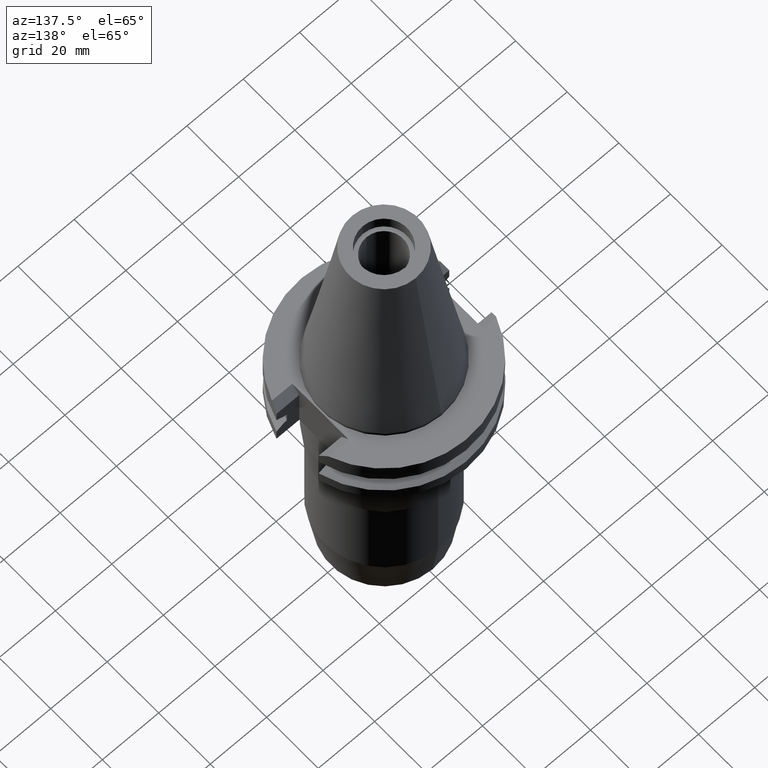
[diagram: clean part render]
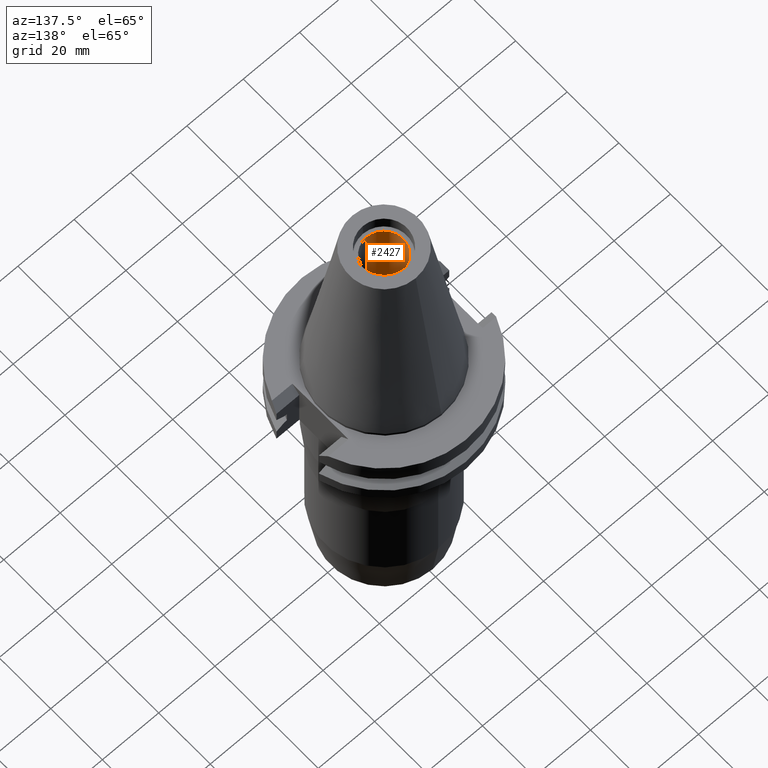
[diagram: same view with one face highlighted and labeled with its STEP entity id]
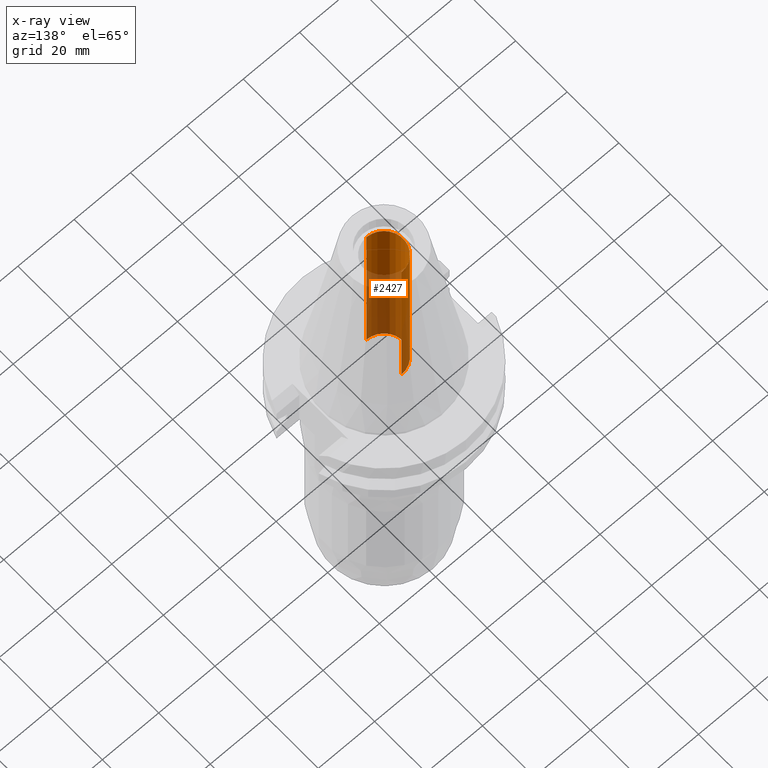
[diagram: x-ray of the same camera — body ghosted, the highlighted face saturated]
A machine part, auxiliary view. The second image highlights one B-rep face of the part: STEP entity #2427.
The next image is the same camera in x-ray: the body ghosted, the highlighted face saturated — about 57% of this face is hidden behind the body in this view.
In plain terms, the highlighted cylindrical surface (edge-blend (fillet) strip) has radius 6.8 mm, axis along (0, 0, -1).
Its self-contained STEP definition (entity closure, byte-faithful):
#1175=CARTESIAN_POINT('',(0.E0,2.164471368983E-14,8.526512829121E-14));
#1176=DIRECTION('',(0.E0,0.E0,-1.E0));
#1177=DIRECTION('',(0.E0,-1.E0,0.E0));
#1178=AXIS2_PLACEMENT_3D('',#1175,#1176,#1177);
#1190=DIRECTION('',(0.E0,0.E0,1.E0));
#1191=VECTOR('',#1190,6.347E1);
#1192=CARTESIAN_POINT('',(0.E0,6.8E0,9.947598300641E-14));
#1193=LINE('',#1192,#1191);
#1205=DIRECTION('',(0.E0,0.E0,1.E0));
#1206=VECTOR('',#1205,6.347E1);
#1207=CARTESIAN_POINT('',(0.E0,-6.8E0,9.947598300641E-14));
#1208=LINE('',#1207,#1206);
#1236=CARTESIAN_POINT('',(0.E0,2.164471368983E-14,6.347E1));
#1237=DIRECTION('',(0.E0,0.E0,1.E0));
#1238=DIRECTION('',(0.E0,1.E0,0.E0));
#1239=AXIS2_PLACEMENT_3D('',#1236,#1237,#1238);
#1270=CARTESIAN_POINT('',(0.E0,-6.8E0,6.347E1));
#1271=CARTESIAN_POINT('',(0.E0,6.8E0,6.347E1));
#1272=VERTEX_POINT('',#1270);
#1273=VERTEX_POINT('',#1271);
#1274=CARTESIAN_POINT('',(0.E0,6.8E0,9.947598300641E-14));
#1275=VERTEX_POINT('',#1274);
#1276=CARTESIAN_POINT('',(0.E0,-6.8E0,9.947598300641E-14));
#1277=VERTEX_POINT('',#1276);
#2415=CARTESIAN_POINT('',(0.E0,2.164471368983E-14,7.67425E1));
#2416=DIRECTION('',(0.E0,0.E0,-1.E0));
#2417=DIRECTION('',(0.E0,-1.E0,0.E0));
#2418=AXIS2_PLACEMENT_3D('',#2415,#2416,#2417);
#2419=CYLINDRICAL_SURFACE('',#2418,6.8E0);
#2420=ORIENTED_EDGE('',*,*,#2405,.F.);
#2421=ORIENTED_EDGE('',*,*,#2382,.F.);
#2422=ORIENTED_EDGE('',*,*,#2409,.T.);
#2424=ORIENTED_EDGE('',*,*,#2423,.F.);
#2425=EDGE_LOOP('',(#2420,#2421,#2422,#2424));
#2426=FACE_OUTER_BOUND('',#2425,.F.);
#1179=CIRCLE('',#1178,6.8E0);
#1240=CIRCLE('',#1239,6.8E0);
#2382=EDGE_CURVE('',#1277,#1275,#1179,.T.);
#2405=EDGE_CURVE('',#1275,#1273,#1193,.T.);
#2409=EDGE_CURVE('',#1277,#1272,#1208,.T.);
#2423=EDGE_CURVE('',#1273,#1272,#1240,.T.);
#2427=ADVANCED_FACE('',(#2426),#2419,.F.);